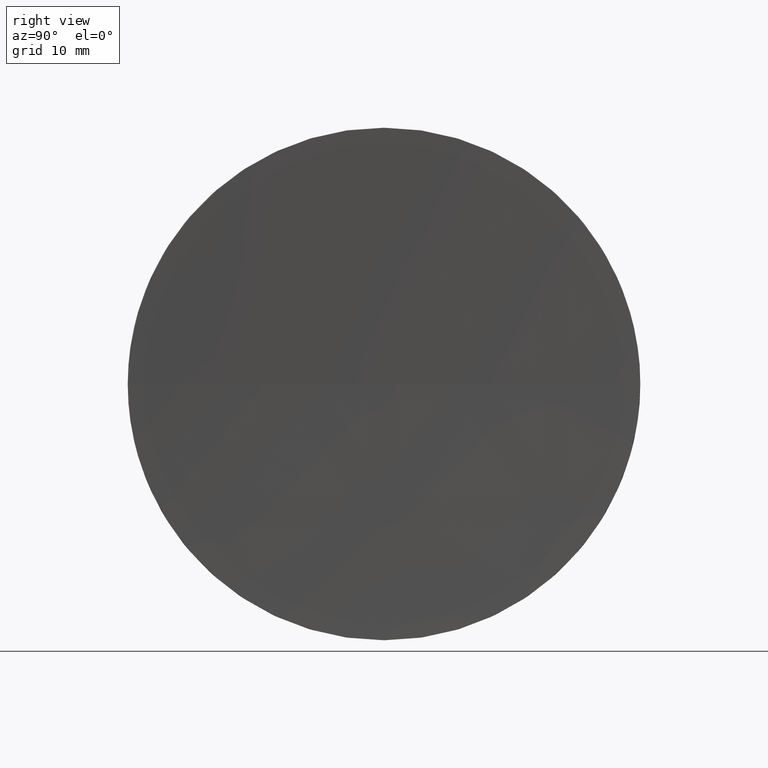
[diagram: clean part render]
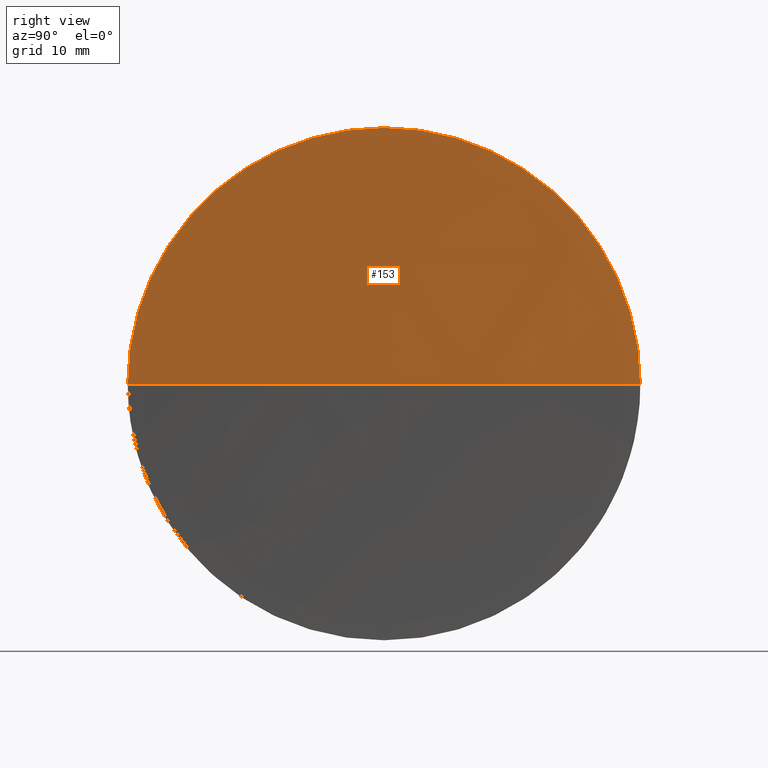
[diagram: same view with one face highlighted and labeled with its STEP entity id]
A machine part, right view. The second image highlights one B-rep face of the part: STEP entity #153.
In plain terms, the highlighted spherical surface has radius 600 mm.
Its self-contained STEP definition (entity closure, byte-faithful):
#3 = ORIENTED_EDGE ( 'NONE', *, *, #152, .T. ) ;
#7 = VERTEX_POINT ( 'NONE', #169 ) ;
#17 = AXIS2_PLACEMENT_3D ( 'NONE', #26, #39, #87 ) ;
#19 = EDGE_LOOP ( 'NONE', ( #120, #180, #42, #3 ) ) ;
#23 = VERTEX_POINT ( 'NONE', #155 ) ;
#26 = CARTESIAN_POINT ( 'NONE',  ( 239.7063708809449700, 138.7560422467448700, 0.0000000000000000000 ) ) ;
#28 = DIRECTION ( 'NONE',  ( -1.000000000000000000, -0.0000000000000000000, -0.0000000000000000000 ) ) ;
#29 = DIRECTION ( 'NONE',  ( 0.0000000000000000000, -1.000000000000000000, 0.0000000000000000000 ) ) ;
#33 = EDGE_CURVE ( 'NONE', #38, #7, #79, .T. ) ;
#38 = VERTEX_POINT ( 'NONE', #115 ) ;
#39 = DIRECTION ( 'NONE',  ( -1.000000000000000000, -0.0000000000000000000, -0.0000000000000000000 ) ) ;
#42 = ORIENTED_EDGE ( 'NONE', *, *, #134, .F. ) ;
#43 = DIRECTION ( 'NONE',  ( 0.0000000000000000000, 0.0000000000000000000, -1.000000000000000000 ) ) ;
#48 = CARTESIAN_POINT ( 'NONE',  ( 839.1853112950349200, 138.7560422467449000, 0.0000000000000000000 ) ) ;
#51 = FACE_OUTER_BOUND ( 'NONE', #19, .T. ) ;
#69 = CARTESIAN_POINT ( 'NONE',  ( 239.7063708809449700, 138.7560422467448700, 0.0000000000000000000 ) ) ;
#77 = CIRCLE ( 'NONE', #162, 600.0000000000000000 ) ;
#79 = CIRCLE ( 'NONE', #17, 24.99999999999999300 ) ;
#87 = DIRECTION ( 'NONE',  ( 0.0000000000000000000, 0.0000000000000000000, 1.000000000000000000 ) ) ;
#90 = DIRECTION ( 'NONE',  ( 0.0000000000000000000, -1.224646799147353200E-016, 1.000000000000000000 ) ) ;
#96 = AXIS2_PLACEMENT_3D ( 'NONE', #159, #146, #29 ) ;
#106 = AXIS2_PLACEMENT_3D ( 'NONE', #48, #43, #147 ) ;
#115 = CARTESIAN_POINT ( 'NONE',  ( 239.7063708809449700, 138.7560422467448700, 24.99999999999999300 ) ) ;
#116 = CARTESIAN_POINT ( 'NONE',  ( 839.1853112950349200, 138.7560422467449000, 0.0000000000000000000 ) ) ;
#120 = ORIENTED_EDGE ( 'NONE', *, *, #179, .F. ) ;
#128 = CARTESIAN_POINT ( 'NONE',  ( 239.7063708809450000, 113.7560422467444600, 0.0000000000000000000 ) ) ;
#130 = DIRECTION ( 'NONE',  ( 0.0000000000000000000, -1.000000000000000000, -1.224646799147353200E-016 ) ) ;
#134 = EDGE_CURVE ( 'NONE', #175, #38, #164, .T. ) ;
#136 = CIRCLE ( 'NONE', #106, 600.0000000000000000 ) ;
#146 = DIRECTION ( 'NONE',  ( 0.0000000000000000000, 0.0000000000000000000, 1.000000000000000000 ) ) ;
#147 = DIRECTION ( 'NONE',  ( -1.000000000000000000, 0.0000000000000000000, 0.0000000000000000000 ) ) ;
#152 = EDGE_CURVE ( 'NONE', #175, #23, #136, .T. ) ;
#153 = ADVANCED_FACE ( 'NONE', ( #51 ), #168, .F. ) ;
#155 = CARTESIAN_POINT ( 'NONE',  ( 239.1853112950349500, 138.7560422467448700, 0.0000000000000000000 ) ) ;
#159 = CARTESIAN_POINT ( 'NONE',  ( 839.1853112950349200, 138.7560422467449000, 0.0000000000000000000 ) ) ;
#162 = AXIS2_PLACEMENT_3D ( 'NONE', #116, #90, #130 ) ;
#164 = CIRCLE ( 'NONE', #166, 24.99999999999999300 ) ;
#166 = AXIS2_PLACEMENT_3D ( 'NONE', #69, #28, #172 ) ;
#168 = SPHERICAL_SURFACE ( 'NONE', #96, 600.0000000000000000 ) ;
#169 = CARTESIAN_POINT ( 'NONE',  ( 239.7063708809450000, 163.7560422467453000, 3.061616997868432700E-015 ) ) ;
#172 = DIRECTION ( 'NONE',  ( 0.0000000000000000000, 0.0000000000000000000, 1.000000000000000000 ) ) ;
#175 = VERTEX_POINT ( 'NONE', #128 ) ;
#179 = EDGE_CURVE ( 'NONE', #7, #23, #77, .T. ) ;
#180 = ORIENTED_EDGE ( 'NONE', *, *, #33, .F. ) ;